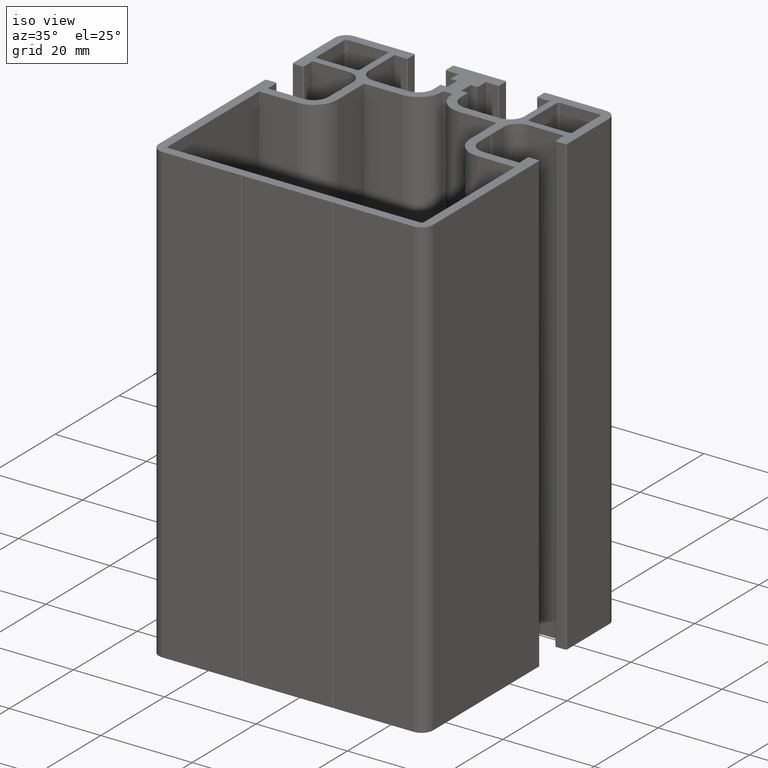
[diagram: clean part render]
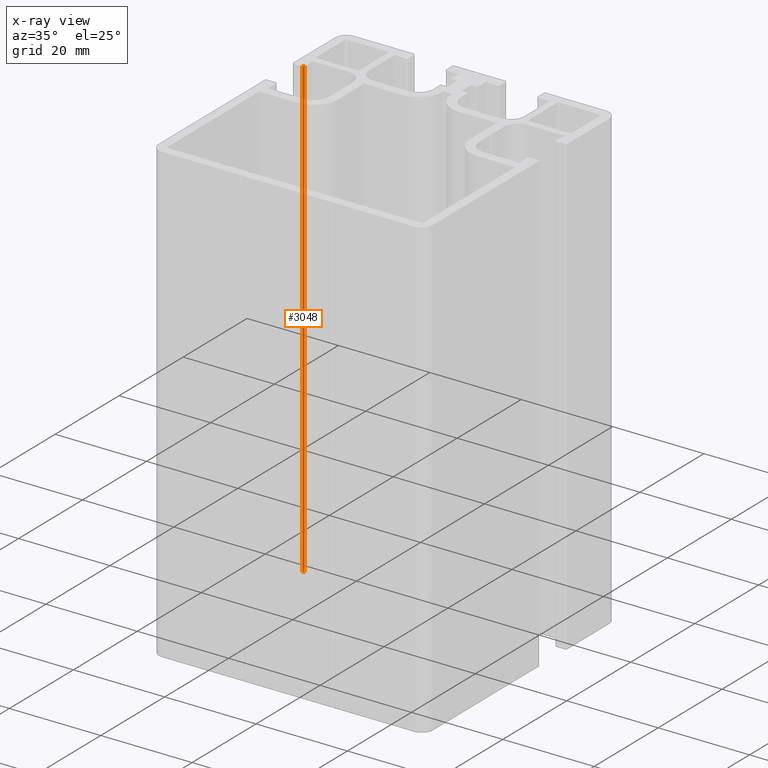
[diagram: x-ray — body ghosted, one internal face saturated and labeled with its STEP entity id]
A machine part, iso view, then the same camera in x-ray: the body is ghosted and one INTERNAL B-rep face — a face not visible from any outside direction — is saturated and labeled: STEP entity #3048.
In plain terms, the highlighted cylindrical surface (edge-blend (fillet) strip) has radius 0.3 mm, axis along (0, 0, 1).
Its self-contained STEP definition (entity closure, byte-faithful):
#97=CIRCLE('',#3281,0.299999999999983);
#98=CIRCLE('',#3282,0.299999999999983);
#179=CYLINDRICAL_SURFACE('',#3280,0.299999999999983);
#296=FACE_OUTER_BOUND('',#450,.T.);
#450=EDGE_LOOP('',(#2327,#2328,#2329,#2330));
#724=LINE('',#4842,#1060);
#725=LINE('',#4848,#1061);
#1060=VECTOR('',#3936,100.);
#1061=VECTOR('',#3943,100.);
#1377=VERTEX_POINT('',#4838);
#1378=VERTEX_POINT('',#4840);
#1379=VERTEX_POINT('',#4844);
#1380=VERTEX_POINT('',#4846);
#1776=EDGE_CURVE('',#1377,#1378,#724,.T.);
#1777=EDGE_CURVE('',#1377,#1379,#97,.T.);
#1778=EDGE_CURVE('',#1380,#1378,#98,.T.);
#1779=EDGE_CURVE('',#1379,#1380,#725,.T.);
#2327=ORIENTED_EDGE('',*,*,#1777,.F.);
#2328=ORIENTED_EDGE('',*,*,#1776,.T.);
#2329=ORIENTED_EDGE('',*,*,#1778,.F.);
#2330=ORIENTED_EDGE('',*,*,#1779,.F.);
#3048=ADVANCED_FACE('',(#296),#179,.T.);
#3280=AXIS2_PLACEMENT_3D('',#4843,#3937,#3938);
#3281=AXIS2_PLACEMENT_3D('',#4845,#3939,#3940);
#3282=AXIS2_PLACEMENT_3D('',#4847,#3941,#3942);
#3936=DIRECTION('',(0.,0.,1.));
#3937=DIRECTION('center_axis',(0.,0.,1.));
#3938=DIRECTION('ref_axis',(-1.48029736616696E-14,1.,0.));
#3939=DIRECTION('center_axis',(0.,0.,-1.));
#3940=DIRECTION('ref_axis',(-1.48029736616696E-14,1.,0.));
#3941=DIRECTION('center_axis',(0.,0.,1.));
#3942=DIRECTION('ref_axis',(-1.48029736616696E-14,1.,0.));
#3943=DIRECTION('',(0.,0.,1.));
#4838=CARTESIAN_POINT('',(-27.5000000000019,14.45,0.));
#4840=CARTESIAN_POINT('',(-27.5000000000019,14.45,100.));
#4842=CARTESIAN_POINT('',(-27.5000000000019,14.45,0.));
#4843=CARTESIAN_POINT('Origin',(-27.8000000000019,14.45,0.));
#4844=CARTESIAN_POINT('',(-27.8000000000019,14.1500000000001,0.));
#4845=CARTESIAN_POINT('Origin',(-27.8000000000019,14.45,0.));
#4846=CARTESIAN_POINT('',(-27.8000000000019,14.1500000000001,100.));
#4847=CARTESIAN_POINT('Origin',(-27.8000000000019,14.45,100.));
#4848=CARTESIAN_POINT('',(-27.8000000000019,14.1500000000001,0.));